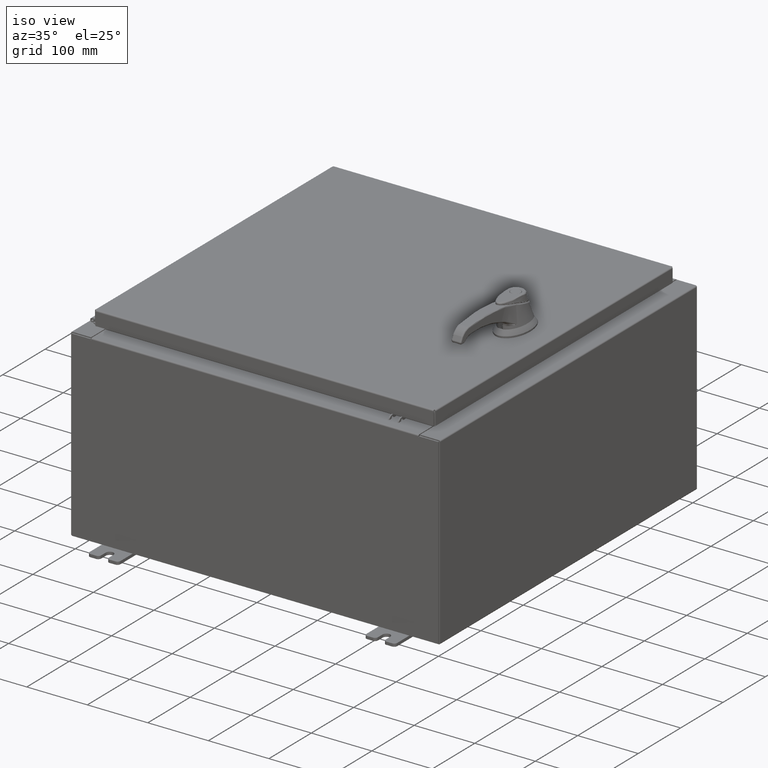
[diagram: clean part render]
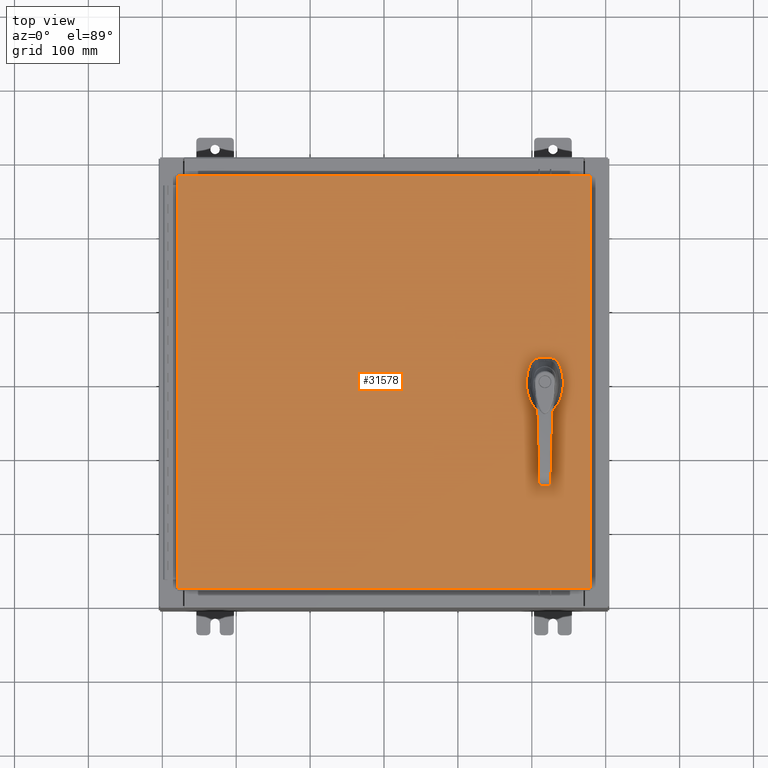
[diagram: tour spotlight — one face highlighted and labeled with its STEP entity id]
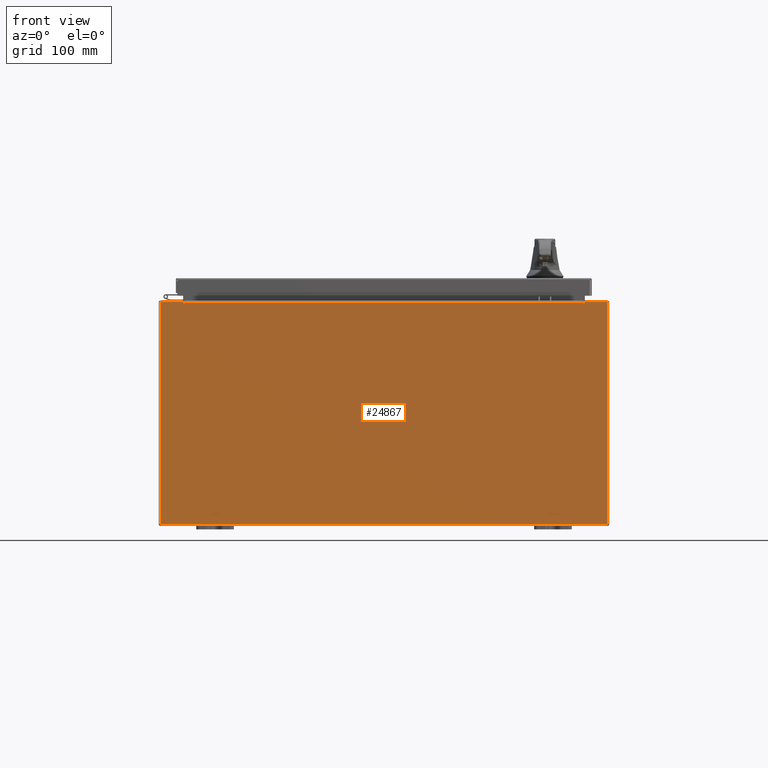
[diagram: tour spotlight — one face highlighted and labeled with its STEP entity id]
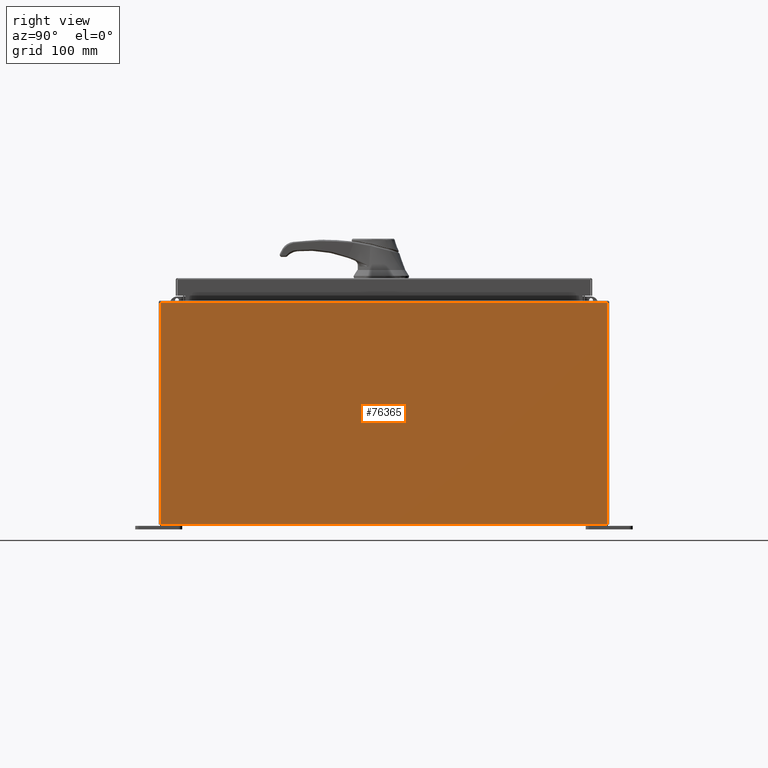
[diagram: tour spotlight — one face highlighted and labeled with its STEP entity id]
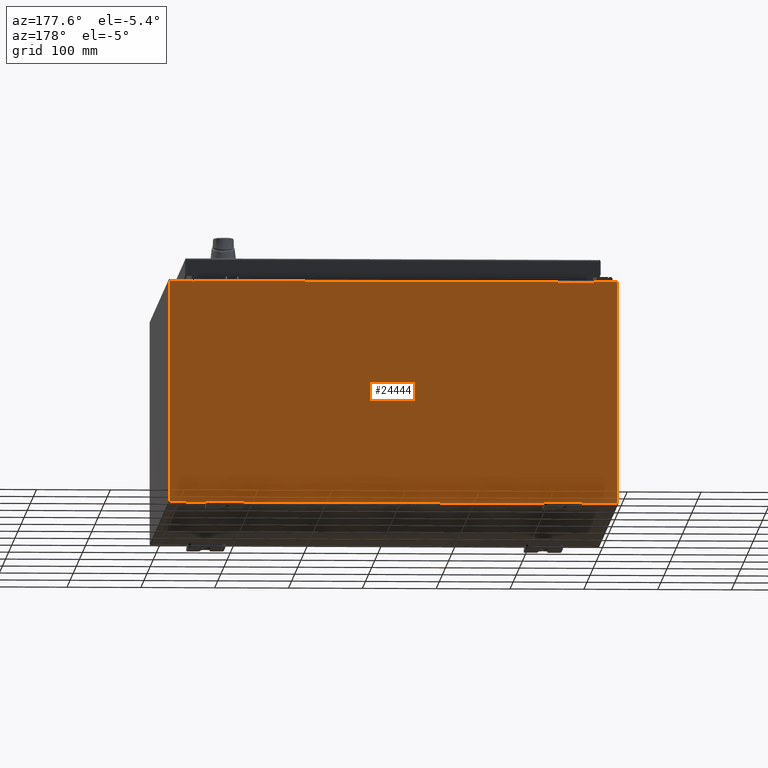
[diagram: tour spotlight — one face highlighted and labeled with its STEP entity id]
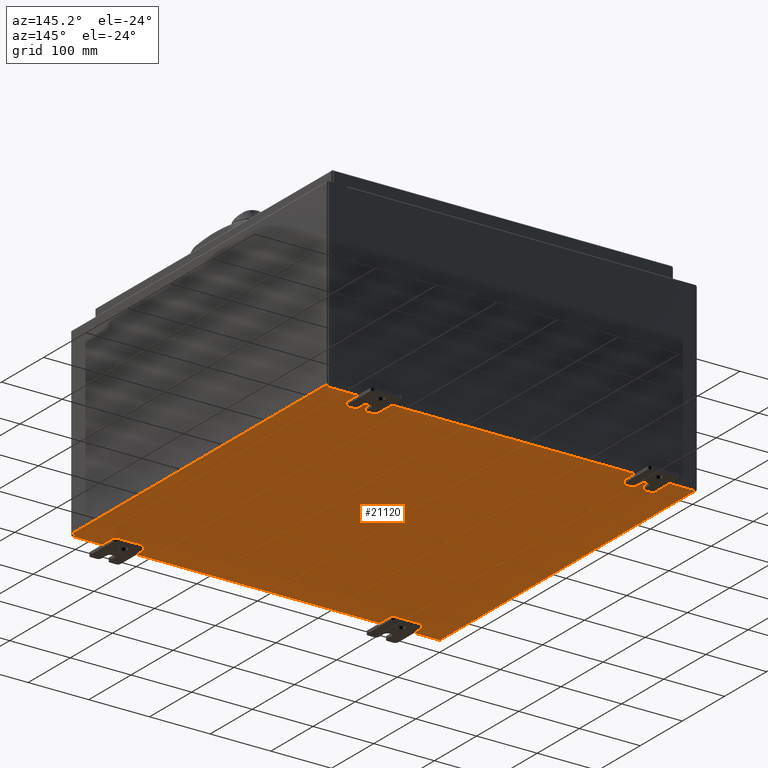
[diagram: tour spotlight — one face highlighted and labeled with its STEP entity id]
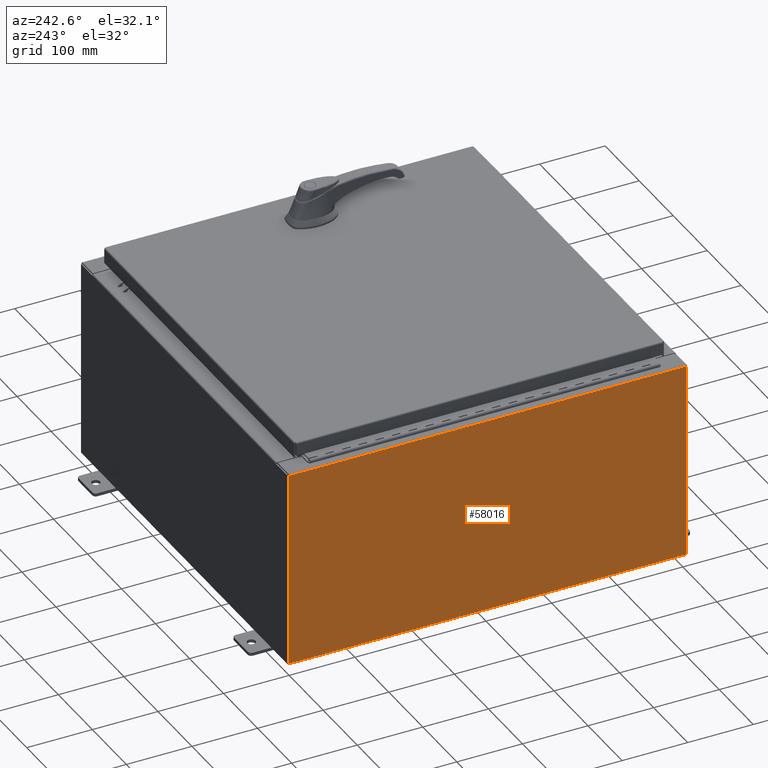
[diagram: tour spotlight — one face highlighted and labeled with its STEP entity id]
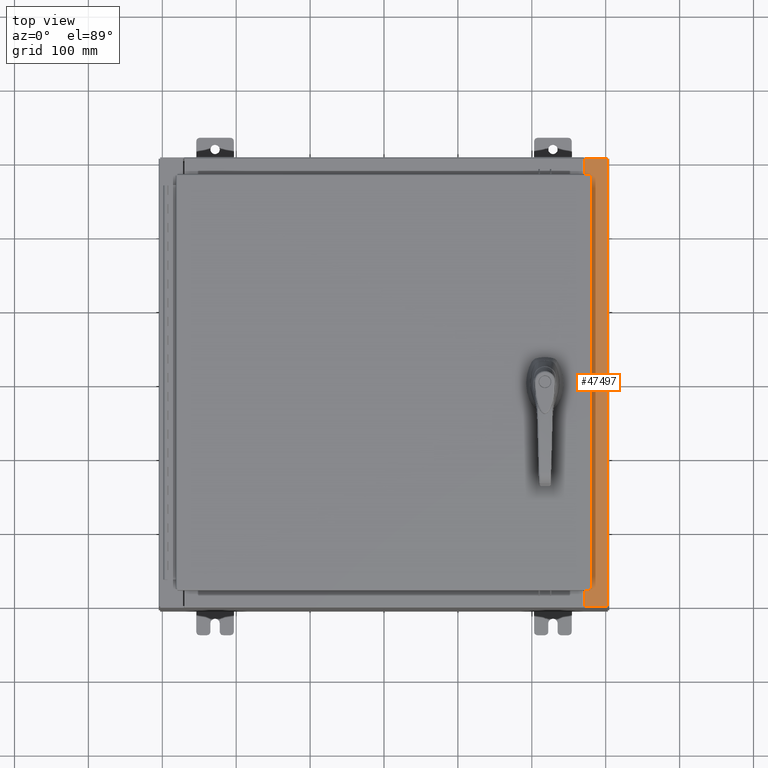
[diagram: tour spotlight — one face highlighted and labeled with its STEP entity id]
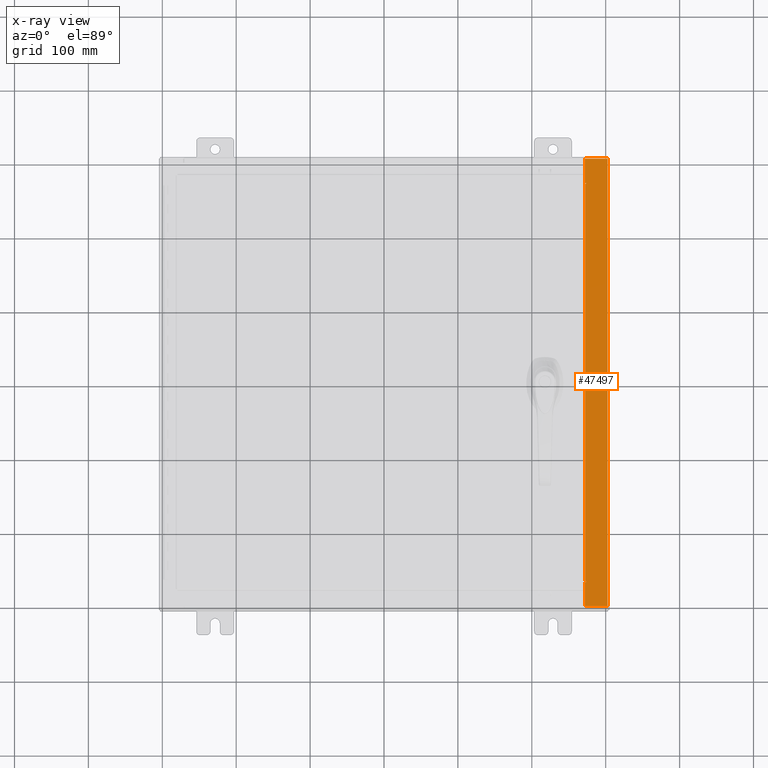
[diagram: x-ray of the same camera — body ghosted, this tour face saturated]
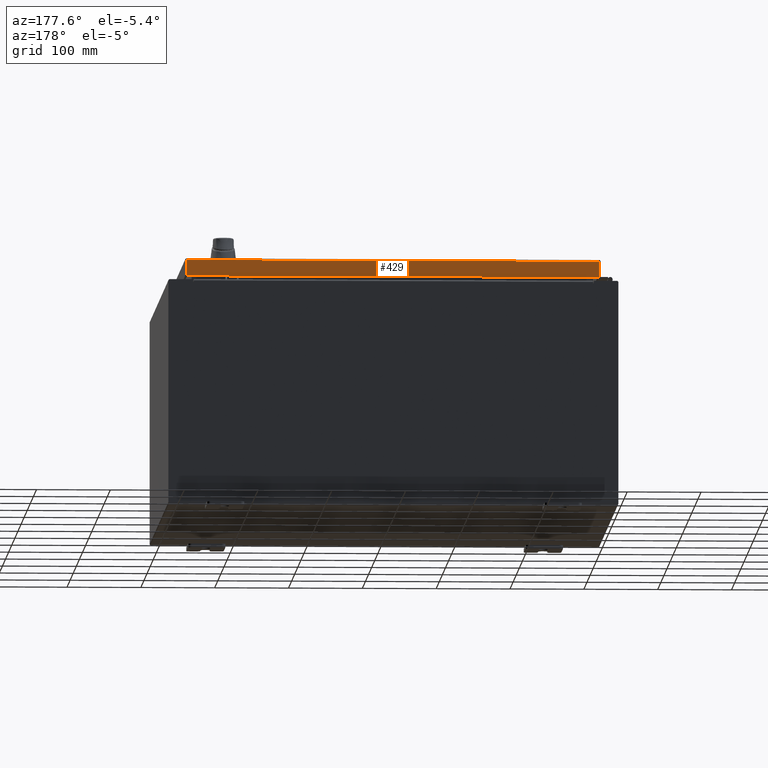
[diagram: tour spotlight — one face highlighted and labeled with its STEP entity id]
A machine part: a face-by-face anatomy tour. The part has 2412 B-rep faces; the first image is the clean iso view, then the 8 largest visible faces are spotlighted one at a time (largest first), each with its STEP entity span.

Face 1 — top view, entity #31578. In plain terms, the highlighted planar face has unit normal (0, 0, -1).
Definition (entity closure, byte-faithful):
#26 = DIRECTION ( 'NONE',  ( -0.0000000000000000000, 0.0000000000000000000, 1.000000000000000000 ) ) ;
#1238 = VERTEX_POINT ( 'NONE', #42299 ) ;
#1305 = CIRCLE ( 'NONE', #53357, 0.4499999999999156900 ) ;
#2290 = CARTESIAN_POINT ( 'NONE',  ( 10.99029999999999600, -11.00630000000000100, -2.048885995248197400E-016 ) ) ;
#5111 = ORIENTED_EDGE ( 'NONE', *, *, #45853, .F. ) ;
#5965 = DIRECTION ( 'NONE',  ( -0.0000000000000000000, 0.0000000000000000000, 1.000000000000000000 ) ) ;
#8018 = CARTESIAN_POINT ( 'NONE',  ( 8.778227370756305000, 0.4029999999999252000, 0.0000000000000000000 ) ) ;
#8946 = LINE ( 'NONE', #88522, #14341 ) ;
#8962 = CARTESIAN_POINT ( 'NONE',  ( 0.0000000000000000000, 0.0000000000000000000, 0.0000000000000000000 ) ) ;
#9280 = CIRCLE ( 'NONE', #18692, 0.4499999999999156900 ) ;
#9351 = EDGE_CURVE ( 'NONE', #39423, #33227, #97936, .T. ) ;
#10570 = FACE_OUTER_BOUND ( 'NONE', #33126, .T. ) ;
#10669 = AXIS2_PLACEMENT_3D ( 'NONE', #18669, #79337, #27395 ) ;
#10787 = EDGE_LOOP ( 'NONE', ( #25527, #47181 ) ) ;
#11740 = LINE ( 'NONE', #44744, #75570 ) ;
#12543 = VERTEX_POINT ( 'NONE', #18929 ) ;
#12577 = EDGE_CURVE ( 'NONE', #1238, #107110, #15071, .T. ) ;
#13098 = VERTEX_POINT ( 'NONE', #102400 ) ;
#14341 = VECTOR ( 'NONE', #36663, 39.37007874015748100 ) ;
#15071 = CIRCLE ( 'NONE', #75426, 0.4499999999999156900 ) ;
#17662 = EDGE_CURVE ( 'NONE', #98731, #103594, #21286, .T. ) ;
#17685 = DIRECTION ( 'NONE',  ( 0.0000000000000000000, 0.0000000000000000000, -1.000000000000000000 ) ) ;
#18669 = CARTESIAN_POINT ( 'NONE',  ( 8.577999999999995900, 0.0000000000000000000, 0.0000000000000000000 ) ) ;
#18692 = AXIS2_PLACEMENT_3D ( 'NONE', #51947, #26, #60638 ) ;
#18929 = CARTESIAN_POINT ( 'NONE',  ( 10.99029999999999800, 11.00629999999999600, -2.048885995248197400E-016 ) ) ;
#18984 = CARTESIAN_POINT ( 'NONE',  ( 8.577999999999995900, 0.0000000000000000000, 0.0000000000000000000 ) ) ;
#20931 = ORIENTED_EDGE ( 'NONE', *, *, #31781, .T. ) ;
#20967 = LINE ( 'NONE', #92505, #90108 ) ;
#21286 = LINE ( 'NONE', #110734, #59298 ) ;
#21361 = EDGE_CURVE ( 'NONE', #107110, #75089, #61592, .T. ) ;
#25527 = ORIENTED_EDGE ( 'NONE', *, *, #9351, .F. ) ;
#25776 = ORIENTED_EDGE ( 'NONE', *, *, #12577, .F. ) ;
#27395 = DIRECTION ( 'NONE',  ( 1.000000000000000000, 0.0000000000000000000, 0.0000000000000000000 ) ) ;
#27722 = DIRECTION ( 'NONE',  ( 1.000000000000000000, 0.0000000000000000000, 0.0000000000000000000 ) ) ;
#28022 = DIRECTION ( 'NONE',  ( -0.0000000000000000000, 0.0000000000000000000, 1.000000000000000000 ) ) ;
#28703 = VERTEX_POINT ( 'NONE', #2290 ) ;
#30155 = CARTESIAN_POINT ( 'NONE',  ( 8.980999999999921700, 2.450686610769031800E-014, 0.0000000000000000000 ) ) ;
#31578 = ADVANCED_FACE ( 'NONE', ( #56703, #10570, #77082 ), #43510, .F. ) ;
#31781 = EDGE_CURVE ( 'NONE', #82555, #43561, #66194, .T. ) ;
#33005 = EDGE_CURVE ( 'NONE', #103594, #28703, #11740, .T. ) ;
#33126 = EDGE_LOOP ( 'NONE', ( #65178, #109154, #108598, #73415 ) ) ;
#33227 = VERTEX_POINT ( 'NONE', #62769 ) ;
#35512 = EDGE_CURVE ( 'NONE', #28703, #12543, #86114, .T. ) ;
#35954 = CARTESIAN_POINT ( 'NONE',  ( 8.778227370756305000, -0.4029999999999252000, 0.0000000000000000000 ) ) ;
#36663 = DIRECTION ( 'NONE',  ( -1.000000000000000000, 0.0000000000000000000, 0.0000000000000000000 ) ) ;
#36806 = VECTOR ( 'NONE', #74822, 39.37007874015748100 ) ;
#38895 = DIRECTION ( 'NONE',  ( 2.728745808672812900E-015, -1.000000000000000000, 0.0000000000000000000 ) ) ;
#39423 = VERTEX_POINT ( 'NONE', #64529 ) ;
#39500 = LINE ( 'NONE', #100503, #36806 ) ;
#39679 = VERTEX_POINT ( 'NONE', #8018 ) ;
#40017 = VECTOR ( 'NONE', #40260, 39.37007874015748100 ) ;
#40260 = DIRECTION ( 'NONE',  ( 0.0000000000000000000, 1.000000000000000000, 0.0000000000000000000 ) ) ;
#42299 = CARTESIAN_POINT ( 'NONE',  ( 8.175000000000070000, -0.2002273707563079800, 0.0000000000000000000 ) ) ;
#42360 = CARTESIAN_POINT ( 'NONE',  ( 8.577999999999995900, -1.338000000000000100, 0.0000000000000000000 ) ) ;
#43510 = PLANE ( 'NONE',  #108779 ) ;
#43561 = VERTEX_POINT ( 'NONE', #93897 ) ;
#44744 = CARTESIAN_POINT ( 'NONE',  ( -10.99030000000000000, -11.00630000000000100, -2.048885995248197400E-016 ) ) ;
#45853 = EDGE_CURVE ( 'NONE', #75089, #43561, #53283, .T. ) ;
#47181 = ORIENTED_EDGE ( 'NONE', *, *, #64956, .F. ) ;
#48305 = CARTESIAN_POINT ( 'NONE',  ( 8.377772629243686700, -0.4029999999999252000, 0.0000000000000000000 ) ) ;
#49580 = EDGE_CURVE ( 'NONE', #12543, #98731, #39500, .T. ) ;
#51067 = DIRECTION ( 'NONE',  ( 1.000000000000000000, 0.0000000000000000000, 0.0000000000000000000 ) ) ;
#51125 = ORIENTED_EDGE ( 'NONE', *, *, #82012, .F. ) ;
#51661 = DIRECTION ( 'NONE',  ( 1.000000000000000000, 0.0000000000000000000, 0.0000000000000000000 ) ) ;
#51947 = CARTESIAN_POINT ( 'NONE',  ( 8.577999999999995900, 0.0000000000000000000, 0.0000000000000000000 ) ) ;
#52221 = AXIS2_PLACEMENT_3D ( 'NONE', #57916, #5965, #66648 ) ;
#53283 = CIRCLE ( 'NONE', #10669, 0.4499999999999156900 ) ;
#53357 = AXIS2_PLACEMENT_3D ( 'NONE', #18984, #79665, #27722 ) ;
#53451 = DIRECTION ( 'NONE',  ( 1.000000000000000000, -0.0000000000000000000, -0.0000000000000000000 ) ) ;
#56703 = FACE_BOUND ( 'NONE', #10787, .T. ) ;
#57916 = CARTESIAN_POINT ( 'NONE',  ( 8.577999999999995900, -1.338000000000000100, 0.0000000000000000000 ) ) ;
#58869 = VECTOR ( 'NONE', #51661, 39.37007874015748100 ) ;
#59298 = VECTOR ( 'NONE', #67971, 39.37007874015748100 ) ;
#60592 = VERTEX_POINT ( 'NONE', #78919 ) ;
#60638 = DIRECTION ( 'NONE',  ( 1.000000000000000000, 0.0000000000000000000, 0.0000000000000000000 ) ) ;
#61592 = LINE ( 'NONE', #88645, #58869 ) ;
#61961 = EDGE_CURVE ( 'NONE', #82555, #39679, #9280, .T. ) ;
#62769 = CARTESIAN_POINT ( 'NONE',  ( 8.406499999999994100, -1.338000000000000100, 0.0000000000000000000 ) ) ;
#64529 = CARTESIAN_POINT ( 'NONE',  ( 8.749499999999997600, -1.338000000000000100, 0.0000000000000000000 ) ) ;
#64956 = EDGE_CURVE ( 'NONE', #33227, #39423, #112010, .T. ) ;
#65178 = ORIENTED_EDGE ( 'NONE', *, *, #33005, .T. ) ;
#65262 = EDGE_CURVE ( 'NONE', #39679, #60592, #8946, .T. ) ;
#65735 = ORIENTED_EDGE ( 'NONE', *, *, #21361, .F. ) ;
#66194 = LINE ( 'NONE', #30155, #86547 ) ;
#66648 = DIRECTION ( 'NONE',  ( 1.000000000000000000, 0.0000000000000000000, 0.0000000000000000000 ) ) ;
#67971 = DIRECTION ( 'NONE',  ( 0.0000000000000000000, -1.000000000000000000, 0.0000000000000000000 ) ) ;
#73415 = ORIENTED_EDGE ( 'NONE', *, *, #17662, .T. ) ;
#74444 = EDGE_CURVE ( 'NONE', #60592, #13098, #1305, .T. ) ;
#74744 = CARTESIAN_POINT ( 'NONE',  ( 10.99029999999999600, -11.00630000000000100, -2.048885995248197400E-016 ) ) ;
#74822 = DIRECTION ( 'NONE',  ( -1.000000000000000000, -0.0000000000000000000, -0.0000000000000000000 ) ) ;
#75089 = VERTEX_POINT ( 'NONE', #35954 ) ;
#75426 = AXIS2_PLACEMENT_3D ( 'NONE', #79962, #28022, #88619 ) ;
#75570 = VECTOR ( 'NONE', #53451, 39.37007874015748100 ) ;
#77082 = FACE_BOUND ( 'NONE', #95301, .T. ) ;
#77672 = CARTESIAN_POINT ( 'NONE',  ( -10.99030000000000500, 11.00629999999999600, -1.348849946871729900E-015 ) ) ;
#78366 = DIRECTION ( 'NONE',  ( -1.000000000000000000, 0.0000000000000000000, -0.0000000000000000000 ) ) ;
#78919 = CARTESIAN_POINT ( 'NONE',  ( 8.377772629243686700, 0.4029999999999252000, 0.0000000000000000000 ) ) ;
#79337 = DIRECTION ( 'NONE',  ( -0.0000000000000000000, 0.0000000000000000000, 1.000000000000000000 ) ) ;
#79665 = DIRECTION ( 'NONE',  ( -0.0000000000000000000, 0.0000000000000000000, 1.000000000000000000 ) ) ;
#79874 = CARTESIAN_POINT ( 'NONE',  ( 8.980999999999921700, 0.2002273707563080300, 0.0000000000000000000 ) ) ;
#79962 = CARTESIAN_POINT ( 'NONE',  ( 8.577999999999995900, 0.0000000000000000000, 0.0000000000000000000 ) ) ;
#82012 = EDGE_CURVE ( 'NONE', #13098, #1238, #20967, .T. ) ;
#82555 = VERTEX_POINT ( 'NONE', #79874 ) ;
#83850 = DIRECTION ( 'NONE',  ( 0.0000000000000000000, -1.000000000000000000, 0.0000000000000000000 ) ) ;
#84021 = CARTESIAN_POINT ( 'NONE',  ( -10.99030000000000000, -11.00630000000000100, -2.048885995248197400E-016 ) ) ;
#86114 = LINE ( 'NONE', #74744, #40017 ) ;
#86547 = VECTOR ( 'NONE', #38895, 39.37007874015748100 ) ;
#87020 = ORIENTED_EDGE ( 'NONE', *, *, #65262, .F. ) ;
#88522 = CARTESIAN_POINT ( 'NONE',  ( 0.0000000000000000000, 0.4029999999999252000, 0.0000000000000000000 ) ) ;
#88619 = DIRECTION ( 'NONE',  ( 1.000000000000000000, 0.0000000000000000000, 0.0000000000000000000 ) ) ;
#88645 = CARTESIAN_POINT ( 'NONE',  ( 0.0000000000000000000, -0.4029999999999252000, 0.0000000000000000000 ) ) ;
#90108 = VECTOR ( 'NONE', #83850, 39.37007874015748100 ) ;
#90457 = AXIS2_PLACEMENT_3D ( 'NONE', #42360, #102918, #51067 ) ;
#92505 = CARTESIAN_POINT ( 'NONE',  ( 8.175000000000070000, 0.0000000000000000000, 0.0000000000000000000 ) ) ;
#93897 = CARTESIAN_POINT ( 'NONE',  ( 8.980999999999921700, -0.2002273707563079800, 0.0000000000000000000 ) ) ;
#95301 = EDGE_LOOP ( 'NONE', ( #20931, #5111, #65735, #25776, #51125, #102934, #87020, #108213 ) ) ;
#97936 = CIRCLE ( 'NONE', #90457, 0.1715000000000011500 ) ;
#98731 = VERTEX_POINT ( 'NONE', #77672 ) ;
#100503 = CARTESIAN_POINT ( 'NONE',  ( 10.99029999999999800, 11.00629999999999600, -2.048885995248197400E-016 ) ) ;
#102400 = CARTESIAN_POINT ( 'NONE',  ( 8.175000000000070000, 0.2002273707563079800, 0.0000000000000000000 ) ) ;
#102918 = DIRECTION ( 'NONE',  ( -0.0000000000000000000, 0.0000000000000000000, 1.000000000000000000 ) ) ;
#102934 = ORIENTED_EDGE ( 'NONE', *, *, #74444, .F. ) ;
#103594 = VERTEX_POINT ( 'NONE', #84021 ) ;
#107110 = VERTEX_POINT ( 'NONE', #48305 ) ;
#108213 = ORIENTED_EDGE ( 'NONE', *, *, #61961, .F. ) ;
#108598 = ORIENTED_EDGE ( 'NONE', *, *, #49580, .T. ) ;
#108779 = AXIS2_PLACEMENT_3D ( 'NONE', #8962, #17685, #78366 ) ;
#109154 = ORIENTED_EDGE ( 'NONE', *, *, #35512, .T. ) ;
#110734 = CARTESIAN_POINT ( 'NONE',  ( -10.99030000000000500, 11.00629999999999600, -1.348849946871729900E-015 ) ) ;
#112010 = CIRCLE ( 'NONE', #52221, 0.1715000000000011500 ) ;

Face 2 — front view, entity #24867. In plain terms, the highlighted planar face has unit normal (-0, 1, -0).
Definition (entity closure, byte-faithful):
#341 = VERTEX_POINT ( 'NONE', #38865 ) ;
#1184 = VERTEX_POINT ( 'NONE', #67703 ) ;
#2074 = ORIENTED_EDGE ( 'NONE', *, *, #16098, .T. ) ;
#2854 = LINE ( 'NONE', #6493, #48963 ) ;
#3064 = CARTESIAN_POINT ( 'NONE',  ( 10.63720000000000400, 0.0000000000000000000, 5.874950000000001000 ) ) ;
#4443 = CARTESIAN_POINT ( 'NONE',  ( 10.63720000000000400, 0.0000000000000000000, 0.0000000000000000000 ) ) ;
#4909 = EDGE_LOOP ( 'NONE', ( #21504, #23114, #72546, #106798, #92325, #47218, #29687, #27200, #12538, #2074, #90900, #67774 ) ) ;
#6493 = CARTESIAN_POINT ( 'NONE',  ( -10.63720000000000400, -1.707404996040164500E-016, 5.912300000000001000 ) ) ;
#6624 = CARTESIAN_POINT ( 'NONE',  ( -10.63720000000000400, -0.0000000000000000000, 5.874950000000001000 ) ) ;
#6976 = EDGE_CURVE ( 'NONE', #37010, #32819, #10109, .T. ) ;
#7613 = VECTOR ( 'NONE', #61624, 39.37007874015748100 ) ;
#7746 = CARTESIAN_POINT ( 'NONE',  ( 10.67455000000000200, 0.0000000000000000000, 0.0000000000000000000 ) ) ;
#7856 = VECTOR ( 'NONE', #73446, 39.37007874015748100 ) ;
#8939 = DIRECTION ( 'NONE',  ( 0.0000000000000000000, 0.0000000000000000000, -1.000000000000000000 ) ) ;
#9076 = CARTESIAN_POINT ( 'NONE',  ( -10.67455000000000200, 0.0000000000000000000, 5.925300000000000000 ) ) ;
#10109 = LINE ( 'NONE', #73668, #33211 ) ;
#11212 = CARTESIAN_POINT ( 'NONE',  ( 10.67455000000000200, 0.0000000000000000000, 5.925300000000001800 ) ) ;
#12163 = DIRECTION ( 'NONE',  ( -1.000000000000000000, -0.0000000000000000000, -0.0000000000000000000 ) ) ;
#12538 = ORIENTED_EDGE ( 'NONE', *, *, #23378, .T. ) ;
#14756 = DIRECTION ( 'NONE',  ( -0.0000000000000000000, 1.000000000000000000, -0.0000000000000000000 ) ) ;
#16098 = EDGE_CURVE ( 'NONE', #18116, #37010, #68985, .T. ) ;
#16394 = VECTOR ( 'NONE', #39850, 39.37007874015748100 ) ;
#18116 = VERTEX_POINT ( 'NONE', #69375 ) ;
#18690 = EDGE_CURVE ( 'NONE', #46418, #49986, #99759, .T. ) ;
#18788 = CARTESIAN_POINT ( 'NONE',  ( 10.65587500000000200, 0.0000000000000000000, 5.874950000000001000 ) ) ;
#21039 = CIRCLE ( 'NONE', #21146, 0.01867499999999949400 ) ;
#21146 = AXIS2_PLACEMENT_3D ( 'NONE', #66748, #14756, #75475 ) ;
#21504 = ORIENTED_EDGE ( 'NONE', *, *, #18690, .F. ) ;
#21954 = VECTOR ( 'NONE', #92074, 39.37007874015748100 ) ;
#23114 = ORIENTED_EDGE ( 'NONE', *, *, #36520, .F. ) ;
#23378 = EDGE_CURVE ( 'NONE', #341, #18116, #93833, .T. ) ;
#23660 = EDGE_CURVE ( 'NONE', #1184, #73860, #28722, .T. ) ;
#24867 = ADVANCED_FACE ( 'NONE', ( #24968 ), #76177, .F. ) ;
#24968 = FACE_OUTER_BOUND ( 'NONE', #4909, .T. ) ;
#27200 = ORIENTED_EDGE ( 'NONE', *, *, #88367, .T. ) ;
#27519 = DIRECTION ( 'NONE',  ( 0.0000000000000000000, 0.0000000000000000000, -1.000000000000000000 ) ) ;
#28063 = VECTOR ( 'NONE', #8939, 39.37007874015748100 ) ;
#28722 = CIRCLE ( 'NONE', #104892, 0.01867499999999949400 ) ;
#29687 = ORIENTED_EDGE ( 'NONE', *, *, #37742, .F. ) ;
#29836 = CARTESIAN_POINT ( 'NONE',  ( 11.92530000000000000, 0.0000000000000000000, 5.925300000000001800 ) ) ;
#31104 = CARTESIAN_POINT ( 'NONE',  ( -11.92530000000000000, 0.0000000000000000000, 5.925300000000000000 ) ) ;
#32623 = CARTESIAN_POINT ( 'NONE',  ( -10.63720000000000400, -1.707404996040164500E-016, 5.912300000000001000 ) ) ;
#32819 = VERTEX_POINT ( 'NONE', #77382 ) ;
#33211 = VECTOR ( 'NONE', #39185, 39.37007874015748100 ) ;
#33720 = CARTESIAN_POINT ( 'NONE',  ( -10.67455000000000200, 0.0000000000000000000, 5.874950000000001000 ) ) ;
#35897 = CARTESIAN_POINT ( 'NONE',  ( -10.67455000000000200, -0.0000000000000000000, 0.0000000000000000000 ) ) ;
#36520 = EDGE_CURVE ( 'NONE', #39187, #46418, #21039, .T. ) ;
#36614 = VERTEX_POINT ( 'NONE', #32623 ) ;
#37010 = VERTEX_POINT ( 'NONE', #80326 ) ;
#37742 = EDGE_CURVE ( 'NONE', #98989, #1184, #56935, .T. ) ;
#38865 = CARTESIAN_POINT ( 'NONE',  ( 11.92530000000000000, 0.0000000000000000000, 5.925300000000001800 ) ) ;
#39185 = DIRECTION ( 'NONE',  ( -0.0000000000000000000, -0.0000000000000000000, 1.000000000000000000 ) ) ;
#39187 = VERTEX_POINT ( 'NONE', #6624 ) ;
#39850 = DIRECTION ( 'NONE',  ( 1.000000000000000000, 0.0000000000000000000, 4.581600452255731000E-017 ) ) ;
#39875 = VECTOR ( 'NONE', #76204, 39.37007874015748100 ) ;
#41689 = CARTESIAN_POINT ( 'NONE',  ( 0.0000000000000000000, 0.0000000000000000000, 0.0000000000000000000 ) ) ;
#46418 = VERTEX_POINT ( 'NONE', #33720 ) ;
#47218 = ORIENTED_EDGE ( 'NONE', *, *, #23660, .F. ) ;
#48963 = VECTOR ( 'NONE', #67197, 39.37007874015748100 ) ;
#49986 = VERTEX_POINT ( 'NONE', #9076 ) ;
#50384 = DIRECTION ( 'NONE',  ( 0.0000000000000000000, -0.0000000000000000000, -1.000000000000000000 ) ) ;
#50597 = EDGE_CURVE ( 'NONE', #36614, #39187, #91727, .T. ) ;
#55424 = CARTESIAN_POINT ( 'NONE',  ( -11.92530000000000000, 0.0000000000000000000, -5.925299999999999100 ) ) ;
#56657 = VERTEX_POINT ( 'NONE', #97618 ) ;
#56935 = LINE ( 'NONE', #7746, #80035 ) ;
#58882 = EDGE_CURVE ( 'NONE', #36614, #56657, #2854, .T. ) ;
#61624 = DIRECTION ( 'NONE',  ( 0.0000000000000000000, 0.0000000000000000000, 1.000000000000000000 ) ) ;
#62865 = EDGE_CURVE ( 'NONE', #73860, #56657, #97290, .T. ) ;
#66748 = CARTESIAN_POINT ( 'NONE',  ( -10.65587500000000200, 0.0000000000000000000, 5.874950000000001000 ) ) ;
#67197 = DIRECTION ( 'NONE',  ( 1.000000000000000000, 0.0000000000000000000, 0.0000000000000000000 ) ) ;
#67492 = CARTESIAN_POINT ( 'NONE',  ( -11.92530000000000000, 0.0000000000000000000, 5.925300000000000000 ) ) ;
#67703 = CARTESIAN_POINT ( 'NONE',  ( 10.67455000000000200, 0.0000000000000000000, 5.874950000000001000 ) ) ;
#67774 = ORIENTED_EDGE ( 'NONE', *, *, #106114, .T. ) ;
#68421 = DIRECTION ( 'NONE',  ( 0.0000000000000000000, 0.0000000000000000000, -1.000000000000000000 ) ) ;
#68985 = LINE ( 'NONE', #55424, #91963 ) ;
#69375 = CARTESIAN_POINT ( 'NONE',  ( 11.92530000000000000, 0.0000000000000000000, -5.925299999999999100 ) ) ;
#72546 = ORIENTED_EDGE ( 'NONE', *, *, #50597, .F. ) ;
#73446 = DIRECTION ( 'NONE',  ( 0.0000000000000000000, 0.0000000000000000000, 1.000000000000000000 ) ) ;
#73668 = CARTESIAN_POINT ( 'NONE',  ( -11.92530000000000000, 0.0000000000000000000, 5.925300000000000000 ) ) ;
#73860 = VERTEX_POINT ( 'NONE', #3064 ) ;
#75475 = DIRECTION ( 'NONE',  ( 0.0000000000000000000, 0.0000000000000000000, -1.000000000000000000 ) ) ;
#76177 = PLANE ( 'NONE',  #86853 ) ;
#76204 = DIRECTION ( 'NONE',  ( 1.000000000000000000, 0.0000000000000000000, 4.581600452255731000E-017 ) ) ;
#77382 = CARTESIAN_POINT ( 'NONE',  ( -11.92530000000000000, 0.0000000000000000000, 5.925300000000000000 ) ) ;
#79462 = DIRECTION ( 'NONE',  ( -0.0000000000000000000, 1.000000000000000000, -0.0000000000000000000 ) ) ;
#80035 = VECTOR ( 'NONE', #68421, 39.37007874015748100 ) ;
#80326 = CARTESIAN_POINT ( 'NONE',  ( -11.92530000000000000, 0.0000000000000000000, -5.925299999999999100 ) ) ;
#85608 = LINE ( 'NONE', #31104, #16394 ) ;
#85982 = LINE ( 'NONE', #67492, #39875 ) ;
#86853 = AXIS2_PLACEMENT_3D ( 'NONE', #41689, #102254, #50384 ) ;
#88367 = EDGE_CURVE ( 'NONE', #98989, #341, #85608, .T. ) ;
#90900 = ORIENTED_EDGE ( 'NONE', *, *, #6976, .T. ) ;
#91727 = LINE ( 'NONE', #104037, #28063 ) ;
#91963 = VECTOR ( 'NONE', #12163, 39.37007874015748100 ) ;
#92074 = DIRECTION ( 'NONE',  ( 0.0000000000000000000, 0.0000000000000000000, -1.000000000000000000 ) ) ;
#92325 = ORIENTED_EDGE ( 'NONE', *, *, #62865, .F. ) ;
#93833 = LINE ( 'NONE', #29836, #21954 ) ;
#97290 = LINE ( 'NONE', #4443, #7856 ) ;
#97618 = CARTESIAN_POINT ( 'NONE',  ( 10.63720000000000400, 0.0000000000000000000, 5.912300000000001000 ) ) ;
#98989 = VERTEX_POINT ( 'NONE', #11212 ) ;
#99759 = LINE ( 'NONE', #35897, #7613 ) ;
#102254 = DIRECTION ( 'NONE',  ( 0.0000000000000000000, -1.000000000000000000, 0.0000000000000000000 ) ) ;
#104037 = CARTESIAN_POINT ( 'NONE',  ( -10.63720000000000400, -0.0000000000000000000, 0.0000000000000000000 ) ) ;
#104892 = AXIS2_PLACEMENT_3D ( 'NONE', #18788, #79462, #27519 ) ;
#106114 = EDGE_CURVE ( 'NONE', #32819, #49986, #85982, .T. ) ;
#106798 = ORIENTED_EDGE ( 'NONE', *, *, #58882, .T. ) ;

Face 3 — right view, entity #76365. In plain terms, the highlighted planar face has unit normal (-1, 0, 0).
Definition (entity closure, byte-faithful):
#7631 = CARTESIAN_POINT ( 'NONE',  ( 11.99999999999999800, 11.92529999999999800, -3.985953138565242700E-014 ) ) ;
#7801 = VERTEX_POINT ( 'NONE', #38959 ) ;
#11601 = ORIENTED_EDGE ( 'NONE', *, *, #91182, .T. ) ;
#14994 = AXIS2_PLACEMENT_3D ( 'NONE', #87923, #88289, #36420 ) ;
#16333 = DIRECTION ( 'NONE',  ( 3.482016343714355500E-015, -1.832640180902292400E-016, 1.000000000000000000 ) ) ;
#16435 = CARTESIAN_POINT ( 'NONE',  ( 12.00000000000004100, 11.92529999999999600, 11.83760000000000000 ) ) ;
#17608 = FACE_OUTER_BOUND ( 'NONE', #57945, .T. ) ;
#24830 = ORIENTED_EDGE ( 'NONE', *, *, #41887, .T. ) ;
#26650 = LINE ( 'NONE', #104245, #75483 ) ;
#36050 = PLANE ( 'NONE',  #14994 ) ;
#36420 = DIRECTION ( 'NONE',  ( 3.482016343714355100E-015, 0.0000000000000000000, 1.000000000000000000 ) ) ;
#38959 = CARTESIAN_POINT ( 'NONE',  ( 11.99999999999999800, 11.92529999999999600, 0.01299999999999984700 ) ) ;
#41854 = VERTEX_POINT ( 'NONE', #95546 ) ;
#41887 = EDGE_CURVE ( 'NONE', #72654, #46970, #26650, .T. ) ;
#43706 = DIRECTION ( 'NONE',  ( -0.0000000000000000000, -1.000000000000000000, -0.0000000000000000000 ) ) ;
#44144 = ORIENTED_EDGE ( 'NONE', *, *, #111192, .F. ) ;
#46970 = VERTEX_POINT ( 'NONE', #110299 ) ;
#56781 = EDGE_CURVE ( 'NONE', #46970, #41854, #106112, .T. ) ;
#57945 = EDGE_LOOP ( 'NONE', ( #24830, #71636, #44144, #11601 ) ) ;
#60073 = VECTOR ( 'NONE', #99071, 39.37007874015748100 ) ;
#67862 = CARTESIAN_POINT ( 'NONE',  ( 11.99999999999999800, -11.92530000000000400, 0.01299999999999984700 ) ) ;
#71636 = ORIENTED_EDGE ( 'NONE', *, *, #56781, .T. ) ;
#72654 = VERTEX_POINT ( 'NONE', #16435 ) ;
#75483 = VECTOR ( 'NONE', #43706, 39.37007874015748100 ) ;
#76365 = ADVANCED_FACE ( 'NONE', ( #17608 ), #36050, .F. ) ;
#76575 = DIRECTION ( 'NONE',  ( -0.0000000000000000000, -1.000000000000000000, -0.0000000000000000000 ) ) ;
#81361 = VECTOR ( 'NONE', #16333, 39.37007874015748100 ) ;
#85572 = LINE ( 'NONE', #67862, #105837 ) ;
#87923 = CARTESIAN_POINT ( 'NONE',  ( 11.99999999999999800, 0.0000000000000000000, -4.204500978058384000E-014 ) ) ;
#88289 = DIRECTION ( 'NONE',  ( -1.000000000000000000, 0.0000000000000000000, 3.482016343714355100E-015 ) ) ;
#90407 = CARTESIAN_POINT ( 'NONE',  ( 11.99999999999999800, -11.92530000000000400, -4.204500978058384000E-014 ) ) ;
#91182 = EDGE_CURVE ( 'NONE', #7801, #72654, #104382, .T. ) ;
#95546 = CARTESIAN_POINT ( 'NONE',  ( 11.99999999999999800, -11.92530000000000400, 0.01299999999999984700 ) ) ;
#99071 = DIRECTION ( 'NONE',  ( -3.482016343714355500E-015, 0.0000000000000000000, -1.000000000000000000 ) ) ;
#104245 = CARTESIAN_POINT ( 'NONE',  ( 12.00000000000004100, 11.92529999999999800, 11.83760000000000000 ) ) ;
#104382 = LINE ( 'NONE', #7631, #81361 ) ;
#105837 = VECTOR ( 'NONE', #76575, 39.37007874015748100 ) ;
#106112 = LINE ( 'NONE', #90407, #60073 ) ;
#110299 = CARTESIAN_POINT ( 'NONE',  ( 12.00000000000004100, -11.92530000000000400, 11.83760000000000000 ) ) ;
#111192 = EDGE_CURVE ( 'NONE', #7801, #41854, #85572, .T. ) ;

Face 4 — auxiliary view, entity #24444. In plain terms, the highlighted planar face has unit normal (0, -1, 0).
Definition (entity closure, byte-faithful):
#1953 = ORIENTED_EDGE ( 'NONE', *, *, #61449, .T. ) ;
#4004 = LINE ( 'NONE', #59382, #50163 ) ;
#4789 = EDGE_CURVE ( 'NONE', #90845, #67264, #57875, .T. ) ;
#5487 = VERTEX_POINT ( 'NONE', #92050 ) ;
#6350 = CARTESIAN_POINT ( 'NONE',  ( -10.63720000000000400, -0.0000000000000000000, 0.0000000000000000000 ) ) ;
#7315 = EDGE_CURVE ( 'NONE', #59213, #5487, #16865, .T. ) ;
#8053 = ORIENTED_EDGE ( 'NONE', *, *, #104939, .T. ) ;
#8567 = CARTESIAN_POINT ( 'NONE',  ( -11.92530000000000000, 0.0000000000000000000, 5.925300000000000000 ) ) ;
#10611 = EDGE_CURVE ( 'NONE', #5487, #103507, #81596, .T. ) ;
#12020 = VECTOR ( 'NONE', #75582, 39.37007874015748100 ) ;
#12810 = VECTOR ( 'NONE', #105173, 39.37007874015748100 ) ;
#13735 = VERTEX_POINT ( 'NONE', #20990 ) ;
#14433 = VECTOR ( 'NONE', #56602, 39.37007874015748100 ) ;
#15049 = DIRECTION ( 'NONE',  ( 0.0000000000000000000, 0.0000000000000000000, -1.000000000000000000 ) ) ;
#16551 = CARTESIAN_POINT ( 'NONE',  ( 10.65587500000000200, 0.0000000000000000000, 5.874950000000001000 ) ) ;
#16865 = LINE ( 'NONE', #90570, #62967 ) ;
#17525 = LINE ( 'NONE', #58500, #12020 ) ;
#17770 = LINE ( 'NONE', #62397, #81501 ) ;
#18271 = EDGE_CURVE ( 'NONE', #103507, #13735, #49732, .T. ) ;
#19278 = DIRECTION ( 'NONE',  ( 0.0000000000000000000, 0.0000000000000000000, 1.000000000000000000 ) ) ;
#20911 = EDGE_LOOP ( 'NONE', ( #79998, #85523, #82948, #1953, #103915, #100598, #73674, #59006, #8053, #78844, #41488, #101477 ) ) ;
#20990 = CARTESIAN_POINT ( 'NONE',  ( 10.63720000000000400, 0.0000000000000000000, 5.912300000000001000 ) ) ;
#23389 = CARTESIAN_POINT ( 'NONE',  ( -11.92530000000000000, 0.0000000000000000000, -5.925299999999999100 ) ) ;
#24444 = ADVANCED_FACE ( 'NONE', ( #67070 ), #80410, .F. ) ;
#25311 = DIRECTION ( 'NONE',  ( 0.0000000000000000000, 0.0000000000000000000, -1.000000000000000000 ) ) ;
#25419 = DIRECTION ( 'NONE',  ( -0.0000000000000000000, 1.000000000000000000, -0.0000000000000000000 ) ) ;
#26876 = CARTESIAN_POINT ( 'NONE',  ( -10.63720000000000400, -0.0000000000000000000, 5.874950000000001000 ) ) ;
#27544 = CARTESIAN_POINT ( 'NONE',  ( 11.92530000000000000, 0.0000000000000000000, 5.925300000000001800 ) ) ;
#27929 = DIRECTION ( 'NONE',  ( -0.0000000000000000000, -0.0000000000000000000, 1.000000000000000000 ) ) ;
#28765 = CARTESIAN_POINT ( 'NONE',  ( 11.92530000000000000, 0.0000000000000000000, 5.925300000000001800 ) ) ;
#31589 = CARTESIAN_POINT ( 'NONE',  ( -10.67455000000000200, 0.0000000000000000000, 5.874950000000001000 ) ) ;
#34462 = VERTEX_POINT ( 'NONE', #26876 ) ;
#38363 = VERTEX_POINT ( 'NONE', #28765 ) ;
#40445 = CARTESIAN_POINT ( 'NONE',  ( 10.63720000000000400, 0.0000000000000000000, 5.874950000000001000 ) ) ;
#41488 = ORIENTED_EDGE ( 'NONE', *, *, #70828, .T. ) ;
#42666 = VERTEX_POINT ( 'NONE', #31589 ) ;
#43427 = CARTESIAN_POINT ( 'NONE',  ( -11.92530000000000000, 0.0000000000000000000, 5.925300000000000000 ) ) ;
#45881 = CARTESIAN_POINT ( 'NONE',  ( 0.0000000000000000000, 0.0000000000000000000, 0.0000000000000000000 ) ) ;
#47328 = CARTESIAN_POINT ( 'NONE',  ( 10.67455000000000200, 0.0000000000000000000, 5.925300000000001800 ) ) ;
#49732 = LINE ( 'NONE', #80319, #72752 ) ;
#50163 = VECTOR ( 'NONE', #111255, 39.37007874015748100 ) ;
#54615 = DIRECTION ( 'NONE',  ( 0.0000000000000000000, -0.0000000000000000000, -1.000000000000000000 ) ) ;
#56244 = VECTOR ( 'NONE', #86297, 39.37007874015748100 ) ;
#56602 = DIRECTION ( 'NONE',  ( 1.000000000000000000, 0.0000000000000000000, 4.581600452255731000E-017 ) ) ;
#57875 = LINE ( 'NONE', #82380, #14433 ) ;
#58500 = CARTESIAN_POINT ( 'NONE',  ( -10.67455000000000200, -0.0000000000000000000, 0.0000000000000000000 ) ) ;
#59006 = ORIENTED_EDGE ( 'NONE', *, *, #66623, .T. ) ;
#59213 = VERTEX_POINT ( 'NONE', #47328 ) ;
#59382 = CARTESIAN_POINT ( 'NONE',  ( -11.92530000000000000, 0.0000000000000000000, -5.925299999999999100 ) ) ;
#61449 = EDGE_CURVE ( 'NONE', #111018, #13735, #85323, .T. ) ;
#62244 = VECTOR ( 'NONE', #88041, 39.37007874015748100 ) ;
#62397 = CARTESIAN_POINT ( 'NONE',  ( -11.92530000000000000, 0.0000000000000000000, 5.925300000000000000 ) ) ;
#62967 = VECTOR ( 'NONE', #64440, 39.37007874015748100 ) ;
#64440 = DIRECTION ( 'NONE',  ( 0.0000000000000000000, 0.0000000000000000000, -1.000000000000000000 ) ) ;
#66619 = AXIS2_PLACEMENT_3D ( 'NONE', #16551, #77240, #25311 ) ;
#66623 = EDGE_CURVE ( 'NONE', #59213, #38363, #102332, .T. ) ;
#67070 = FACE_OUTER_BOUND ( 'NONE', #20911, .T. ) ;
#67264 = VERTEX_POINT ( 'NONE', #87263 ) ;
#70619 = EDGE_CURVE ( 'NONE', #111018, #34462, #95056, .T. ) ;
#70828 = EDGE_CURVE ( 'NONE', #108039, #90845, #17770, .T. ) ;
#72031 = VECTOR ( 'NONE', #15049, 39.37007874015748100 ) ;
#72752 = VECTOR ( 'NONE', #19278, 39.37007874015748100 ) ;
#73674 = ORIENTED_EDGE ( 'NONE', *, *, #7315, .F. ) ;
#75582 = DIRECTION ( 'NONE',  ( 0.0000000000000000000, 0.0000000000000000000, 1.000000000000000000 ) ) ;
#77240 = DIRECTION ( 'NONE',  ( -0.0000000000000000000, 1.000000000000000000, -0.0000000000000000000 ) ) ;
#77364 = CARTESIAN_POINT ( 'NONE',  ( -10.65587500000000200, 0.0000000000000000000, 5.874950000000001000 ) ) ;
#77862 = EDGE_CURVE ( 'NONE', #34462, #42666, #94669, .T. ) ;
#78647 = CARTESIAN_POINT ( 'NONE',  ( 11.92530000000000000, 0.0000000000000000000, -5.925299999999999100 ) ) ;
#78844 = ORIENTED_EDGE ( 'NONE', *, *, #91497, .T. ) ;
#79998 = ORIENTED_EDGE ( 'NONE', *, *, #92146, .F. ) ;
#80319 = CARTESIAN_POINT ( 'NONE',  ( 10.63720000000000400, 0.0000000000000000000, 0.0000000000000000000 ) ) ;
#80410 = PLANE ( 'NONE',  #88968 ) ;
#81501 = VECTOR ( 'NONE', #27929, 39.37007874015748100 ) ;
#81596 = CIRCLE ( 'NONE', #66619, 0.01867499999999949400 ) ;
#82380 = CARTESIAN_POINT ( 'NONE',  ( -11.92530000000000000, 0.0000000000000000000, 5.925300000000000000 ) ) ;
#82948 = ORIENTED_EDGE ( 'NONE', *, *, #70619, .F. ) ;
#85323 = LINE ( 'NONE', #96342, #62244 ) ;
#85523 = ORIENTED_EDGE ( 'NONE', *, *, #77862, .F. ) ;
#86064 = DIRECTION ( 'NONE',  ( 0.0000000000000000000, 0.0000000000000000000, -1.000000000000000000 ) ) ;
#86297 = DIRECTION ( 'NONE',  ( 1.000000000000000000, 0.0000000000000000000, 4.581600452255731000E-017 ) ) ;
#87263 = CARTESIAN_POINT ( 'NONE',  ( -10.67455000000000200, 0.0000000000000000000, 5.925300000000000000 ) ) ;
#88041 = DIRECTION ( 'NONE',  ( 1.000000000000000000, 0.0000000000000000000, 0.0000000000000000000 ) ) ;
#88968 = AXIS2_PLACEMENT_3D ( 'NONE', #45881, #106471, #54615 ) ;
#90326 = VERTEX_POINT ( 'NONE', #78647 ) ;
#90570 = CARTESIAN_POINT ( 'NONE',  ( 10.67455000000000200, 0.0000000000000000000, 0.0000000000000000000 ) ) ;
#90845 = VERTEX_POINT ( 'NONE', #43427 ) ;
#91497 = EDGE_CURVE ( 'NONE', #90326, #108039, #4004, .T. ) ;
#92050 = CARTESIAN_POINT ( 'NONE',  ( 10.67455000000000200, 0.0000000000000000000, 5.874950000000001000 ) ) ;
#92146 = EDGE_CURVE ( 'NONE', #42666, #67264, #17525, .T. ) ;
#94669 = CIRCLE ( 'NONE', #95677, 0.01867499999999949400 ) ;
#95056 = LINE ( 'NONE', #6350, #72031 ) ;
#95677 = AXIS2_PLACEMENT_3D ( 'NONE', #77364, #25419, #86064 ) ;
#96342 = CARTESIAN_POINT ( 'NONE',  ( -10.63720000000000400, -1.707404996040164500E-016, 5.912300000000001000 ) ) ;
#100598 = ORIENTED_EDGE ( 'NONE', *, *, #10611, .F. ) ;
#101477 = ORIENTED_EDGE ( 'NONE', *, *, #4789, .T. ) ;
#102332 = LINE ( 'NONE', #8567, #56244 ) ;
#102333 = LINE ( 'NONE', #27544, #12810 ) ;
#103507 = VERTEX_POINT ( 'NONE', #40445 ) ;
#103915 = ORIENTED_EDGE ( 'NONE', *, *, #18271, .F. ) ;
#104939 = EDGE_CURVE ( 'NONE', #38363, #90326, #102333, .T. ) ;
#105173 = DIRECTION ( 'NONE',  ( 0.0000000000000000000, 0.0000000000000000000, -1.000000000000000000 ) ) ;
#106471 = DIRECTION ( 'NONE',  ( 0.0000000000000000000, -1.000000000000000000, 0.0000000000000000000 ) ) ;
#108039 = VERTEX_POINT ( 'NONE', #23389 ) ;
#109484 = CARTESIAN_POINT ( 'NONE',  ( -10.63720000000000400, -1.707404996040164500E-016, 5.912300000000001000 ) ) ;
#111018 = VERTEX_POINT ( 'NONE', #109484 ) ;
#111255 = DIRECTION ( 'NONE',  ( -1.000000000000000000, -0.0000000000000000000, -0.0000000000000000000 ) ) ;

Face 5 — auxiliary view, entity #21120. In plain terms, the highlighted planar face has unit normal (0, 0, -1).
Definition (entity closure, byte-faithful):
#1561 = LINE ( 'NONE', #41556, #68034 ) ;
#2060 = EDGE_CURVE ( 'NONE', #57675, #58612, #39031, .T. ) ;
#8409 = VECTOR ( 'NONE', #101207, 39.37007874015748100 ) ;
#11227 = ORIENTED_EDGE ( 'NONE', *, *, #100135, .T. ) ;
#16026 = VERTEX_POINT ( 'NONE', #28540 ) ;
#17064 = PLANE ( 'NONE',  #22738 ) ;
#21120 = ADVANCED_FACE ( 'NONE', ( #49406 ), #17064, .T. ) ;
#22738 = AXIS2_PLACEMENT_3D ( 'NONE', #34549, #95109, #43266 ) ;
#23606 = CARTESIAN_POINT ( 'NONE',  ( -11.91230000000000400, -11.92530000000000000, -0.07469999999999994700 ) ) ;
#28540 = CARTESIAN_POINT ( 'NONE',  ( -11.91230000000000400, 11.92529999999999800, -0.07470000000000000300 ) ) ;
#28647 = CARTESIAN_POINT ( 'NONE',  ( -12.00000000000000400, -11.92530000000000400, -0.07470000000000000300 ) ) ;
#34209 = ORIENTED_EDGE ( 'NONE', *, *, #2060, .F. ) ;
#34549 = CARTESIAN_POINT ( 'NONE',  ( 0.0000000000000000000, 0.0000000000000000000, -0.07470000000000000300 ) ) ;
#39031 = LINE ( 'NONE', #28647, #62093 ) ;
#41556 = CARTESIAN_POINT ( 'NONE',  ( 11.91229999999999800, 11.92529999999999800, -0.07469999999999994700 ) ) ;
#43266 = DIRECTION ( 'NONE',  ( -1.000000000000000000, 0.0000000000000000000, -0.0000000000000000000 ) ) ;
#46347 = LINE ( 'NONE', #49359, #8409 ) ;
#49359 = CARTESIAN_POINT ( 'NONE',  ( -11.91230000000000400, -11.92530000000000400, -0.07469999999999994700 ) ) ;
#49406 = FACE_OUTER_BOUND ( 'NONE', #63484, .T. ) ;
#50575 = CARTESIAN_POINT ( 'NONE',  ( 11.91229999999999800, 11.92529999999999600, -0.07469999999999994700 ) ) ;
#51001 = CARTESIAN_POINT ( 'NONE',  ( 11.91229999999998900, -11.92530000000000400, -0.07470000000000000300 ) ) ;
#56023 = VECTOR ( 'NONE', #94263, 39.37007874015748100 ) ;
#57675 = VERTEX_POINT ( 'NONE', #23606 ) ;
#58612 = VERTEX_POINT ( 'NONE', #51001 ) ;
#62093 = VECTOR ( 'NONE', #97913, 39.37007874015748100 ) ;
#63484 = EDGE_LOOP ( 'NONE', ( #34209, #11227, #93726, #71429 ) ) ;
#65700 = VERTEX_POINT ( 'NONE', #50575 ) ;
#68034 = VECTOR ( 'NONE', #93768, 39.37007874015748100 ) ;
#71429 = ORIENTED_EDGE ( 'NONE', *, *, #89624, .T. ) ;
#76419 = LINE ( 'NONE', #102986, #56023 ) ;
#89624 = EDGE_CURVE ( 'NONE', #65700, #58612, #1561, .T. ) ;
#93726 = ORIENTED_EDGE ( 'NONE', *, *, #98698, .F. ) ;
#93768 = DIRECTION ( 'NONE',  ( -0.0000000000000000000, -1.000000000000000000, -0.0000000000000000000 ) ) ;
#94263 = DIRECTION ( 'NONE',  ( -1.000000000000000000, -0.0000000000000000000, -0.0000000000000000000 ) ) ;
#95109 = DIRECTION ( 'NONE',  ( 0.0000000000000000000, 0.0000000000000000000, -1.000000000000000000 ) ) ;
#97913 = DIRECTION ( 'NONE',  ( 1.000000000000000000, 0.0000000000000000000, 0.0000000000000000000 ) ) ;
#98698 = EDGE_CURVE ( 'NONE', #65700, #16026, #76419, .T. ) ;
#100135 = EDGE_CURVE ( 'NONE', #57675, #16026, #46347, .T. ) ;
#101207 = DIRECTION ( 'NONE',  ( -0.0000000000000000000, 1.000000000000000000, -0.0000000000000000000 ) ) ;
#102986 = CARTESIAN_POINT ( 'NONE',  ( -12.00000000000000400, 11.92529999999999800, -0.07470000000000000300 ) ) ;

Face 6 — auxiliary view, entity #58016. In plain terms, the highlighted planar face has unit normal (1, 0, 0).
Definition (entity closure, byte-faithful):
#2973 = ORIENTED_EDGE ( 'NONE', *, *, #71961, .T. ) ;
#4165 = DIRECTION ( 'NONE',  ( 3.482016343714355100E-015, 0.0000000000000000000, -1.000000000000000000 ) ) ;
#6516 = DIRECTION ( 'NONE',  ( 3.482016343714355500E-015, 0.0000000000000000000, -1.000000000000000000 ) ) ;
#6581 = EDGE_CURVE ( 'NONE', #92776, #97396, #29151, .T. ) ;
#7447 = CARTESIAN_POINT ( 'NONE',  ( -12.00000000000004400, -11.92530000000000000, 11.83760000000000000 ) ) ;
#9070 = EDGE_CURVE ( 'NONE', #83349, #92776, #24843, .T. ) ;
#11489 = EDGE_CURVE ( 'NONE', #60259, #97396, #108553, .T. ) ;
#12483 = CARTESIAN_POINT ( 'NONE',  ( -12.00000000000000400, 0.0000000000000000000, -4.204500978058385200E-014 ) ) ;
#16574 = DIRECTION ( 'NONE',  ( -3.482016343714355500E-015, 0.0000000000000000000, 1.000000000000000000 ) ) ;
#20838 = CARTESIAN_POINT ( 'NONE',  ( -12.00000000000000400, 11.92529999999999800, 0.01299999999999984700 ) ) ;
#23993 = CARTESIAN_POINT ( 'NONE',  ( -12.00000000000000400, 11.92529999999999800, -4.204500978058385200E-014 ) ) ;
#24843 = LINE ( 'NONE', #87453, #106109 ) ;
#29151 = LINE ( 'NONE', #23993, #72552 ) ;
#36776 = VECTOR ( 'NONE', #44617, 39.37007874015748100 ) ;
#40678 = CARTESIAN_POINT ( 'NONE',  ( -12.00000000000000400, -11.92530000000000000, 0.01299999999999984700 ) ) ;
#43676 = ORIENTED_EDGE ( 'NONE', *, *, #11489, .F. ) ;
#44617 = DIRECTION ( 'NONE',  ( -0.0000000000000000000, 1.000000000000000000, -0.0000000000000000000 ) ) ;
#44769 = VECTOR ( 'NONE', #16574, 39.37007874015748100 ) ;
#47446 = LINE ( 'NONE', #68552, #44769 ) ;
#52967 = DIRECTION ( 'NONE',  ( 0.0000000000000000000, 1.000000000000000000, 0.0000000000000000000 ) ) ;
#55520 = AXIS2_PLACEMENT_3D ( 'NONE', #12483, #56100, #4165 ) ;
#56100 = DIRECTION ( 'NONE',  ( 1.000000000000000000, 0.0000000000000000000, 3.482016343714355100E-015 ) ) ;
#58016 = ADVANCED_FACE ( 'NONE', ( #66711 ), #90552, .F. ) ;
#60259 = VERTEX_POINT ( 'NONE', #40678 ) ;
#60408 = ORIENTED_EDGE ( 'NONE', *, *, #9070, .T. ) ;
#62553 = EDGE_LOOP ( 'NONE', ( #60408, #92965, #43676, #2973 ) ) ;
#64803 = CARTESIAN_POINT ( 'NONE',  ( -12.00000000000004400, 11.92529999999999800, 11.83760000000000000 ) ) ;
#66711 = FACE_OUTER_BOUND ( 'NONE', #62553, .T. ) ;
#68552 = CARTESIAN_POINT ( 'NONE',  ( -12.00000000000000400, -11.92530000000000400, -4.204500978058385200E-014 ) ) ;
#71961 = EDGE_CURVE ( 'NONE', #60259, #83349, #47446, .T. ) ;
#72552 = VECTOR ( 'NONE', #6516, 39.37007874015748100 ) ;
#79131 = CARTESIAN_POINT ( 'NONE',  ( -12.00000000000000400, 11.92529999999999800, 0.01299999999999984700 ) ) ;
#83349 = VERTEX_POINT ( 'NONE', #7447 ) ;
#87453 = CARTESIAN_POINT ( 'NONE',  ( -12.00000000000004400, -11.92530000000000400, 11.83760000000000000 ) ) ;
#90552 = PLANE ( 'NONE',  #55520 ) ;
#92776 = VERTEX_POINT ( 'NONE', #64803 ) ;
#92965 = ORIENTED_EDGE ( 'NONE', *, *, #6581, .T. ) ;
#97396 = VERTEX_POINT ( 'NONE', #20838 ) ;
#106109 = VECTOR ( 'NONE', #52967, 39.37007874015748100 ) ;
#108553 = LINE ( 'NONE', #79131, #36776 ) ;

Face 7 — top view, entity #47497. An x-ray twin of the same camera follows (body ghosted, this face saturated) — the face is partly hidden behind the body. In plain terms, the highlighted planar face has unit normal (-0, 0, -1).
Definition (entity closure, byte-faithful):
#1515 = CARTESIAN_POINT ( 'NONE',  ( 10.75005000000004300, 10.61242499999998400, 11.92530000000000900 ) ) ;
#3655 = CARTESIAN_POINT ( 'NONE',  ( 10.69970000000004100, 0.0000000000000000000, 11.92530000000000900 ) ) ;
#5302 = AXIS2_PLACEMENT_3D ( 'NONE', #69413, #17439, #78122 ) ;
#5971 = EDGE_CURVE ( 'NONE', #24937, #112385, #84880, .T. ) ;
#5978 = CIRCLE ( 'NONE', #5302, 0.01867499999999949400 ) ;
#7229 = CARTESIAN_POINT ( 'NONE',  ( 10.69970000000004100, -10.63110000000000200, 11.92530000000000900 ) ) ;
#7620 = LINE ( 'NONE', #25074, #10321 ) ;
#7725 = CARTESIAN_POINT ( 'NONE',  ( 10.71270000000004300, 10.59374999999998400, 11.92530000000000900 ) ) ;
#10176 = DIRECTION ( 'NONE',  ( 1.000000000000000000, 0.0000000000000000000, 0.0000000000000000000 ) ) ;
#10239 = ORIENTED_EDGE ( 'NONE', *, *, #49507, .F. ) ;
#10321 = VECTOR ( 'NONE', #85708, 39.37007874015748100 ) ;
#10591 = DIRECTION ( 'NONE',  ( 1.000000000000000000, 0.0000000000000000000, 0.0000000000000000000 ) ) ;
#10720 = ORIENTED_EDGE ( 'NONE', *, *, #13161, .T. ) ;
#10980 = EDGE_CURVE ( 'NONE', #77866, #69663, #85635, .T. ) ;
#12134 = VERTEX_POINT ( 'NONE', #7725 ) ;
#13161 = EDGE_CURVE ( 'NONE', #39039, #24937, #89577, .T. ) ;
#13559 = CARTESIAN_POINT ( 'NONE',  ( 8.532114493236847900E-014, 0.0000000000000000000, 11.92530000000008500 ) ) ;
#13675 = VECTOR ( 'NONE', #105412, 39.37007874015748100 ) ;
#14524 = CARTESIAN_POINT ( 'NONE',  ( 10.69970000000004100, 10.63109999999998600, 11.92530000000000900 ) ) ;
#15052 = CARTESIAN_POINT ( 'NONE',  ( 10.71270000000004300, -10.59375000000000200, 11.92530000000000900 ) ) ;
#15656 = VECTOR ( 'NONE', #46867, 39.37007874015748100 ) ;
#16222 = ORIENTED_EDGE ( 'NONE', *, *, #52838, .F. ) ;
#16388 = DIRECTION ( 'NONE',  ( -1.000000000000000000, 0.0000000000000000000, 7.132762385546384700E-015 ) ) ;
#17439 = DIRECTION ( 'NONE',  ( 7.132762385546384700E-015, 0.0000000000000000000, 1.000000000000000000 ) ) ;
#19319 = EDGE_CURVE ( 'NONE', #69663, #105475, #87565, .T. ) ;
#19501 = VERTEX_POINT ( 'NONE', #15052 ) ;
#21067 = VECTOR ( 'NONE', #99540, 39.37007874015748100 ) ;
#21124 = EDGE_CURVE ( 'NONE', #28684, #89836, #5978, .T. ) ;
#22099 = CARTESIAN_POINT ( 'NONE',  ( 10.71270000000004300, -10.59374999999999800, 11.92530000000000900 ) ) ;
#24605 = LINE ( 'NONE', #22099, #44946 ) ;
#24937 = VERTEX_POINT ( 'NONE', #24988 ) ;
#24988 = CARTESIAN_POINT ( 'NONE',  ( 10.69970000000004100, 11.92529999999999600, 11.92530000000000900 ) ) ;
#25074 = CARTESIAN_POINT ( 'NONE',  ( 10.71270000000004300, 10.59374999999998400, 11.92530000000000900 ) ) ;
#28684 = VERTEX_POINT ( 'NONE', #97342 ) ;
#30727 = VECTOR ( 'NONE', #100159, 39.37007874015748100 ) ;
#31054 = PLANE ( 'NONE',  #79818 ) ;
#31244 = ORIENTED_EDGE ( 'NONE', *, *, #34619, .F. ) ;
#33444 = EDGE_CURVE ( 'NONE', #39039, #105475, #53784, .T. ) ;
#34269 = CARTESIAN_POINT ( 'NONE',  ( 11.91230000000003900, -11.92530000000000400, 11.92530000000000000 ) ) ;
#34619 = EDGE_CURVE ( 'NONE', #89836, #19501, #106468, .T. ) ;
#35458 = CARTESIAN_POINT ( 'NONE',  ( 10.75005000000004300, -10.59375000000000200, 11.92530000000000900 ) ) ;
#39039 = VERTEX_POINT ( 'NONE', #100593 ) ;
#39141 = ORIENTED_EDGE ( 'NONE', *, *, #103565, .F. ) ;
#39805 = DIRECTION ( 'NONE',  ( -1.000000000000000000, 0.0000000000000000000, 7.132762385546384700E-015 ) ) ;
#42715 = ORIENTED_EDGE ( 'NONE', *, *, #10980, .T. ) ;
#44881 = CARTESIAN_POINT ( 'NONE',  ( 10.69970000000004100, -11.92530000000000400, 11.92530000000000900 ) ) ;
#44946 = VECTOR ( 'NONE', #82745, 39.37007874015748100 ) ;
#45416 = DIRECTION ( 'NONE',  ( -1.000000000000000000, 0.0000000000000000000, 0.0000000000000000000 ) ) ;
#45613 = VECTOR ( 'NONE', #110102, 39.37007874015748100 ) ;
#46867 = DIRECTION ( 'NONE',  ( 0.0000000000000000000, -1.000000000000000000, 0.0000000000000000000 ) ) ;
#47497 = ADVANCED_FACE ( 'NONE', ( #66673 ), #31054, .F. ) ;
#48519 = ORIENTED_EDGE ( 'NONE', *, *, #54552, .F. ) ;
#49507 = EDGE_CURVE ( 'NONE', #19501, #12134, #24605, .T. ) ;
#49518 = CARTESIAN_POINT ( 'NONE',  ( 10.75005000000004300, 10.63109999999998400, 11.92530000000000900 ) ) ;
#50846 = VERTEX_POINT ( 'NONE', #109474 ) ;
#52838 = EDGE_CURVE ( 'NONE', #12134, #85320, #7620, .T. ) ;
#53784 = LINE ( 'NONE', #91466, #30727 ) ;
#53833 = CARTESIAN_POINT ( 'NONE',  ( 10.69970000000004100, -10.63110000000000200, 11.92530000000000900 ) ) ;
#54552 = EDGE_CURVE ( 'NONE', #77866, #28684, #79360, .T. ) ;
#56232 = VECTOR ( 'NONE', #10591, 39.37007874015748100 ) ;
#60432 = VECTOR ( 'NONE', #45416, 39.37007874015748100 ) ;
#61900 = CARTESIAN_POINT ( 'NONE',  ( 10.69970000000004100, 0.0000000000000000000, 11.92530000000000900 ) ) ;
#61984 = EDGE_CURVE ( 'NONE', #85320, #50846, #101448, .T. ) ;
#62141 = DIRECTION ( 'NONE',  ( 7.132762385546384700E-015, 0.0000000000000000000, 1.000000000000000000 ) ) ;
#62268 = EDGE_LOOP ( 'NONE', ( #48519, #42715, #69200, #71447, #10720, #63891, #39141, #85085, #16222, #10239, #31244, #85524 ) ) ;
#63891 = ORIENTED_EDGE ( 'NONE', *, *, #5971, .T. ) ;
#66673 = FACE_OUTER_BOUND ( 'NONE', #62268, .T. ) ;
#69200 = ORIENTED_EDGE ( 'NONE', *, *, #19319, .T. ) ;
#69314 = VECTOR ( 'NONE', #16388, 39.37007874015748100 ) ;
#69413 = CARTESIAN_POINT ( 'NONE',  ( 10.75005000000004300, -10.61242500000000200, 11.92530000000000900 ) ) ;
#69663 = VERTEX_POINT ( 'NONE', #44881 ) ;
#71447 = ORIENTED_EDGE ( 'NONE', *, *, #33444, .F. ) ;
#77073 = CARTESIAN_POINT ( 'NONE',  ( 8.532114493236847900E-014, 11.92529999999999600, 11.92530000000008500 ) ) ;
#77866 = VERTEX_POINT ( 'NONE', #7229 ) ;
#77964 = CARTESIAN_POINT ( 'NONE',  ( 10.75005000000004300, 10.59374999999998400, 11.92530000000000900 ) ) ;
#78122 = DIRECTION ( 'NONE',  ( 1.000000000000000000, 0.0000000000000000000, 0.0000000000000000000 ) ) ;
#79360 = LINE ( 'NONE', #53833, #56232 ) ;
#79818 = AXIS2_PLACEMENT_3D ( 'NONE', #13559, #91634, #39805 ) ;
#82745 = DIRECTION ( 'NONE',  ( -0.0000000000000000000, 1.000000000000000000, -0.0000000000000000000 ) ) ;
#84880 = LINE ( 'NONE', #3655, #15656 ) ;
#85085 = ORIENTED_EDGE ( 'NONE', *, *, #61984, .F. ) ;
#85320 = VERTEX_POINT ( 'NONE', #77964 ) ;
#85524 = ORIENTED_EDGE ( 'NONE', *, *, #21124, .F. ) ;
#85635 = LINE ( 'NONE', #61900, #13675 ) ;
#85708 = DIRECTION ( 'NONE',  ( 1.000000000000000000, 0.0000000000000000000, 0.0000000000000000000 ) ) ;
#87565 = LINE ( 'NONE', #90852, #21067 ) ;
#89577 = LINE ( 'NONE', #77073, #69314 ) ;
#89836 = VERTEX_POINT ( 'NONE', #35458 ) ;
#90852 = CARTESIAN_POINT ( 'NONE',  ( 8.532114493236847900E-014, -11.92530000000000400, 11.92530000000008500 ) ) ;
#91466 = CARTESIAN_POINT ( 'NONE',  ( 11.91230000000003900, -11.92530000000000400, 11.92530000000000000 ) ) ;
#91634 = DIRECTION ( 'NONE',  ( -7.132762385546384700E-015, 0.0000000000000000000, -1.000000000000000000 ) ) ;
#97342 = CARTESIAN_POINT ( 'NONE',  ( 10.75005000000004300, -10.63110000000000200, 11.92530000000000900 ) ) ;
#99540 = DIRECTION ( 'NONE',  ( 1.000000000000000000, 0.0000000000000000000, -7.132762385546384700E-015 ) ) ;
#100159 = DIRECTION ( 'NONE',  ( -0.0000000000000000000, -1.000000000000000000, -0.0000000000000000000 ) ) ;
#100593 = CARTESIAN_POINT ( 'NONE',  ( 11.91230000000003900, 11.92529999999999600, 11.92530000000000000 ) ) ;
#101448 = CIRCLE ( 'NONE', #102141, 0.01867499999999949400 ) ;
#102141 = AXIS2_PLACEMENT_3D ( 'NONE', #1515, #62141, #10176 ) ;
#103565 = EDGE_CURVE ( 'NONE', #50846, #112385, #109280, .T. ) ;
#105412 = DIRECTION ( 'NONE',  ( 0.0000000000000000000, -1.000000000000000000, 0.0000000000000000000 ) ) ;
#105475 = VERTEX_POINT ( 'NONE', #34269 ) ;
#105621 = CARTESIAN_POINT ( 'NONE',  ( 10.75005000000004300, -10.59375000000000200, 11.92530000000000900 ) ) ;
#106468 = LINE ( 'NONE', #105621, #60432 ) ;
#109280 = LINE ( 'NONE', #49518, #45613 ) ;
#109474 = CARTESIAN_POINT ( 'NONE',  ( 10.75005000000004300, 10.63109999999998400, 11.92530000000000900 ) ) ;
#110102 = DIRECTION ( 'NONE',  ( -1.000000000000000000, 0.0000000000000000000, 0.0000000000000000000 ) ) ;
#112385 = VERTEX_POINT ( 'NONE', #14524 ) ;

Face 8 — auxiliary view, entity #429. In plain terms, the highlighted planar face has unit normal (0, -1, -0).
Definition (entity closure, byte-faithful):
#429 = ADVANCED_FACE ( 'NONE', ( #5296 ), #13395, .F. ) ;
#2292 = LINE ( 'NONE', #60356, #91726 ) ;
#2467 = VERTEX_POINT ( 'NONE', #106150 ) ;
#3217 = EDGE_CURVE ( 'NONE', #26634, #2467, #2292, .T. ) ;
#5088 = DIRECTION ( 'NONE',  ( 0.0000000000000000000, 2.532419924601858200E-015, -1.000000000000000000 ) ) ;
#5296 = FACE_OUTER_BOUND ( 'NONE', #93440, .T. ) ;
#13395 = PLANE ( 'NONE',  #91620 ) ;
#17312 = EDGE_CURVE ( 'NONE', #63503, #2467, #78358, .T. ) ;
#22468 = LINE ( 'NONE', #78266, #42850 ) ;
#26337 = DIRECTION ( 'NONE',  ( -0.0000000000000000000, 2.532419924601858200E-015, -1.000000000000000000 ) ) ;
#26634 = VERTEX_POINT ( 'NONE', #65779 ) ;
#37009 = DIRECTION ( 'NONE',  ( -1.000000000000000000, -3.122488847327583000E-031, -7.817847125977018100E-046 ) ) ;
#42498 = EDGE_CURVE ( 'NONE', #109287, #63503, #22468, .T. ) ;
#42850 = VECTOR ( 'NONE', #26337, 39.37007874015748100 ) ;
#46754 = CARTESIAN_POINT ( 'NONE',  ( -11.07800000000000300, 11.09399999999999900, -0.9377000000000025300 ) ) ;
#47690 = ORIENTED_EDGE ( 'NONE', *, *, #42498, .F. ) ;
#51647 = DIRECTION ( 'NONE',  ( 0.0000000000000000000, 2.532419924601858200E-015, -1.000000000000000000 ) ) ;
#52562 = ORIENTED_EDGE ( 'NONE', *, *, #104972, .F. ) ;
#53552 = VECTOR ( 'NONE', #37009, 39.37007874015748100 ) ;
#57025 = DIRECTION ( 'NONE',  ( 3.122488847327582500E-031, -1.000000000000000000, -2.532419924601858200E-015 ) ) ;
#60356 = CARTESIAN_POINT ( 'NONE',  ( 10.98915786437626500, 11.09399999999999800, 2.835548029954458900E-014 ) ) ;
#60697 = VECTOR ( 'NONE', #107340, 39.37007874015748100 ) ;
#63503 = VERTEX_POINT ( 'NONE', #97166 ) ;
#65779 = CARTESIAN_POINT ( 'NONE',  ( 10.98915786437626500, 11.09399999999999800, -0.08770000000000008300 ) ) ;
#66924 = ORIENTED_EDGE ( 'NONE', *, *, #3217, .T. ) ;
#69699 = ORIENTED_EDGE ( 'NONE', *, *, #17312, .F. ) ;
#71303 = CARTESIAN_POINT ( 'NONE',  ( -10.98915786437626900, 11.09399999999999800, -0.08770000000000008300 ) ) ;
#78266 = CARTESIAN_POINT ( 'NONE',  ( -10.98915786437626900, 11.09399999999999800, -0.07469999999999980800 ) ) ;
#78358 = LINE ( 'NONE', #46754, #60697 ) ;
#82801 = CARTESIAN_POINT ( 'NONE',  ( -3.464089127225218900E-030, 11.09399999999999800, 2.835548029954458900E-014 ) ) ;
#88140 = CARTESIAN_POINT ( 'NONE',  ( -11.07800000000000300, 11.09399999999999800, -0.08770000000000008300 ) ) ;
#91620 = AXIS2_PLACEMENT_3D ( 'NONE', #82801, #57025, #5088 ) ;
#91726 = VECTOR ( 'NONE', #51647, 39.37007874015748100 ) ;
#93440 = EDGE_LOOP ( 'NONE', ( #52562, #66924, #69699, #47690 ) ) ;
#97166 = CARTESIAN_POINT ( 'NONE',  ( -10.98915786437626900, 11.09399999999999900, -0.9377000000000025300 ) ) ;
#99563 = LINE ( 'NONE', #88140, #53552 ) ;
#104972 = EDGE_CURVE ( 'NONE', #26634, #109287, #99563, .T. ) ;
#106150 = CARTESIAN_POINT ( 'NONE',  ( 10.98915786437626500, 11.09399999999999900, -0.9376999999999997600 ) ) ;
#107340 = DIRECTION ( 'NONE',  ( 1.000000000000000000, -4.379057701015054300E-047, 1.233005954894504400E-016 ) ) ;
#109287 = VERTEX_POINT ( 'NONE', #71303 ) ;